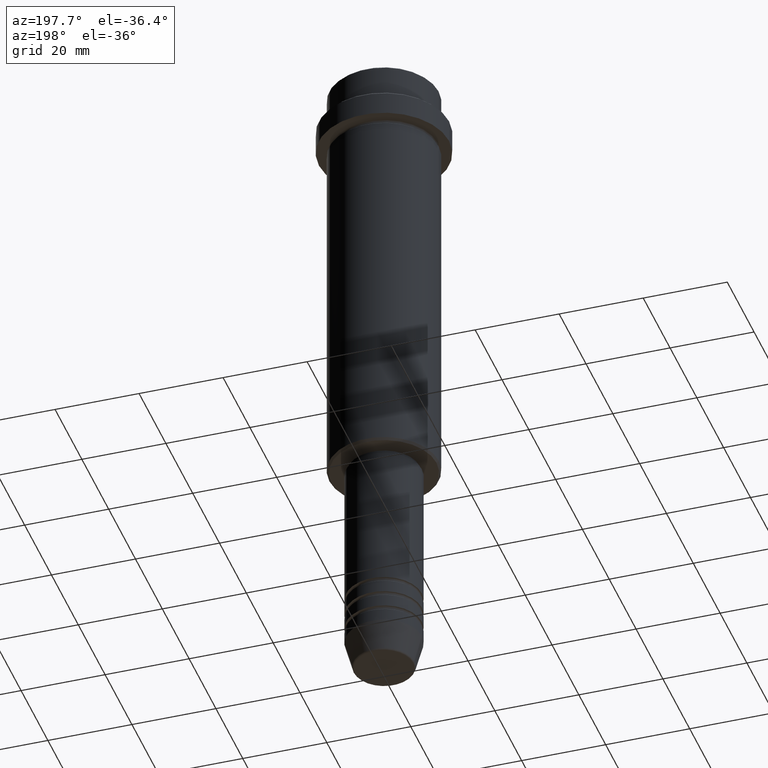
[diagram: clean part render]
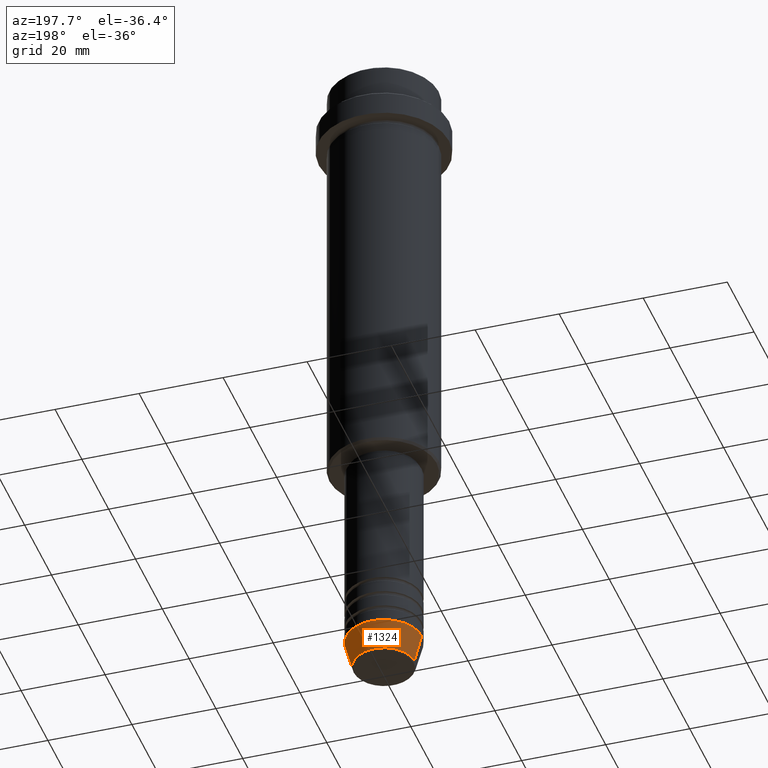
[diagram: same view with one face highlighted and labeled with its STEP entity id]
A machine part, auxiliary view. The second image highlights one B-rep face of the part: STEP entity #1324.
In plain terms, the highlighted conical surface has half-angle 15 deg.
Its self-contained STEP definition (entity closure, byte-faithful):
#5 = DIRECTION ( 'NONE',  ( 0.2588190451025213501, 0.000000000000000000, 0.9659258262890680902 ) ) ;
#81 = CARTESIAN_POINT ( 'NONE',  ( -9.000000000000000000, 1.102182119232617714E-15, -153.0000000000000000 ) ) ;
#135 = FACE_OUTER_BOUND ( 'NONE', #761, .T. ) ;
#149 = AXIS2_PLACEMENT_3D ( 'NONE', #738, #829, #951 ) ;
#190 = VERTEX_POINT ( 'NONE', #81 ) ;
#198 = CARTESIAN_POINT ( 'NONE',  ( 7.223655072137188604, 0.000000000000000000, -159.6294095225512706 ) ) ;
#221 = CARTESIAN_POINT ( 'NONE',  ( 9.000000000000000000, 0.000000000000000000, -153.0000000000000000 ) ) ;
#223 = DIRECTION ( 'NONE',  ( -0.2588190451025213501, 3.169619151431772337E-17, 0.9659258262890680902 ) ) ;
#253 = DIRECTION ( 'NONE',  ( 1.000000000000000000, 0.000000000000000000, 0.000000000000000000 ) ) ;
#269 = AXIS2_PLACEMENT_3D ( 'NONE', #362, #807, #253 ) ;
#271 = EDGE_CURVE ( 'NONE', #1069, #1065, #628, .T. ) ;
#360 = AXIS2_PLACEMENT_3D ( 'NONE', #1281, #1070, #861 ) ;
#362 = CARTESIAN_POINT ( 'NONE',  ( 0.000000000000000000, 0.000000000000000000, -153.0000000000000000 ) ) ;
#376 = ORIENTED_EDGE ( 'NONE', *, *, #1289, .T. ) ;
#412 = CARTESIAN_POINT ( 'NONE',  ( 9.000000000000000000, 0.000000000000000000, -153.0000000000000000 ) ) ;
#425 = VECTOR ( 'NONE', #5, 1000.000000000000000 ) ;
#576 = CARTESIAN_POINT ( 'NONE',  ( -7.223655072137189492, 9.934123627281765110E-16, -159.6294095225512706 ) ) ;
#595 = CIRCLE ( 'NONE', #149, 9.000000000000000000 ) ;
#628 = LINE ( 'NONE', #221, #425 ) ;
#738 = CARTESIAN_POINT ( 'NONE',  ( 0.000000000000000000, 0.000000000000000000, -153.0000000000000000 ) ) ;
#750 = ORIENTED_EDGE ( 'NONE', *, *, #271, .F. ) ;
#761 = EDGE_LOOP ( 'NONE', ( #937, #376, #897, #750 ) ) ;
#807 = DIRECTION ( 'NONE',  ( -0.000000000000000000, -0.000000000000000000, 1.000000000000000000 ) ) ;
#829 = DIRECTION ( 'NONE',  ( -0.000000000000000000, -0.000000000000000000, 1.000000000000000000 ) ) ;
#861 = DIRECTION ( 'NONE',  ( 1.000000000000000000, 0.000000000000000000, 0.000000000000000000 ) ) ;
#873 = LINE ( 'NONE', #1308, #1042 ) ;
#897 = ORIENTED_EDGE ( 'NONE', *, *, #993, .F. ) ;
#937 = ORIENTED_EDGE ( 'NONE', *, *, #1166, .T. ) ;
#951 = DIRECTION ( 'NONE',  ( 1.000000000000000000, 0.000000000000000000, 0.000000000000000000 ) ) ;
#956 = CONICAL_SURFACE ( 'NONE', #269, 9.000000000000000000, 0.2617993877991500740 ) ;
#993 = EDGE_CURVE ( 'NONE', #1065, #190, #595, .T. ) ;
#1042 = VECTOR ( 'NONE', #223, 1000.000000000000000 ) ;
#1065 = VERTEX_POINT ( 'NONE', #412 ) ;
#1069 = VERTEX_POINT ( 'NONE', #198 ) ;
#1070 = DIRECTION ( 'NONE',  ( -0.000000000000000000, -0.000000000000000000, 1.000000000000000000 ) ) ;
#1166 = EDGE_CURVE ( 'NONE', #1069, #1307, #1293, .T. ) ;
#1281 = CARTESIAN_POINT ( 'NONE',  ( 0.000000000000000000, 0.000000000000000000, -159.6294095225512706 ) ) ;
#1289 = EDGE_CURVE ( 'NONE', #1307, #190, #873, .T. ) ;
#1293 = CIRCLE ( 'NONE', #360, 7.223655072137188604 ) ;
#1307 = VERTEX_POINT ( 'NONE', #576 ) ;
#1308 = CARTESIAN_POINT ( 'NONE',  ( -9.000000000000000000, 1.102182119232617714E-15, -153.0000000000000000 ) ) ;
#1324 = ADVANCED_FACE ( 'NONE', ( #135 ), #956, .T. ) ;